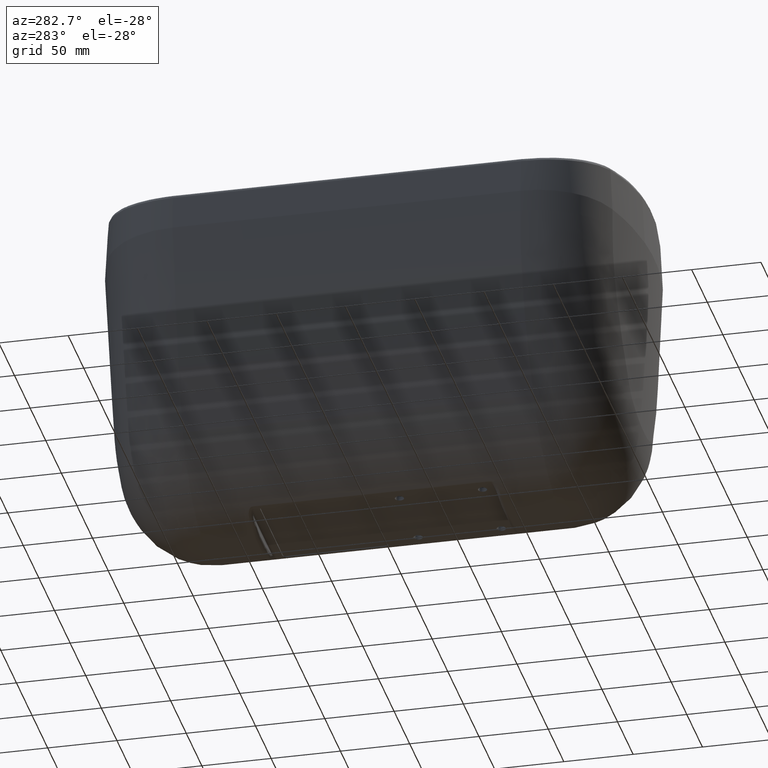
[diagram: clean part render]
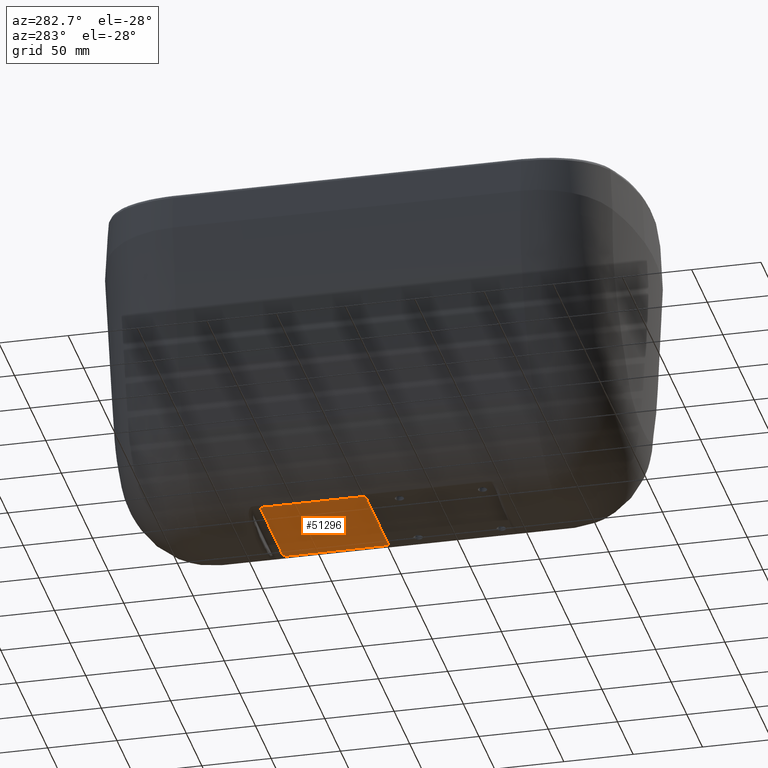
[diagram: same view with one face highlighted and labeled with its STEP entity id]
A machine part, auxiliary view. The second image highlights one B-rep face of the part: STEP entity #51296.
In plain terms, the highlighted planar face has unit normal (0, 0, -1).
Its self-contained STEP definition (entity closure, byte-faithful):
#201 = VECTOR ( 'NONE', #27063, 1000.000000000000000 ) ;
#569 = DIRECTION ( 'NONE',  ( 0.0000000000000000000, 1.000000000000000000, 0.0000000000000000000 ) ) ;
#893 = DIRECTION ( 'NONE',  ( 1.387778780781440499E-16, 4.287526199837195250E-16, -1.000000000000000000 ) ) ;
#1860 = AXIS2_PLACEMENT_3D ( 'NONE', #49621, #20911, #20588 ) ;
#3603 = VECTOR ( 'NONE', #42622, 1000.000000000000000 ) ;
#3881 = ORIENTED_EDGE ( 'NONE', *, *, #5390, .T. ) ;
#5390 = EDGE_CURVE ( 'NONE', #17778, #63738, #18029, .T. ) ;
#5910 = AXIS2_PLACEMENT_3D ( 'NONE', #24760, #893, #569 ) ;
#7415 = CARTESIAN_POINT ( 'NONE',  ( 37.99999999999993605, 129.4999999999972715, 91.49999999999808153 ) ) ;
#8703 = DIRECTION ( 'NONE',  ( 1.387778780781440499E-16, 4.287526199837195250E-16, -1.000000000000000000 ) ) ;
#10908 = PLANE ( 'NONE',  #1860 ) ;
#12025 = DIRECTION ( 'NONE',  ( 0.0000000000000000000, 1.000000000000000000, 0.0000000000000000000 ) ) ;
#12519 = VECTOR ( 'NONE', #14651, 1000.000000000000000 ) ;
#14437 = CIRCLE ( 'NONE', #58737, 2.500000000000002220 ) ;
#14651 = DIRECTION ( 'NONE',  ( -1.661425300935535311E-15, 1.000000000000000000, 5.863854003301890608E-16 ) ) ;
#15496 = DIRECTION ( 'NONE',  ( 0.0000000000000000000, 1.000000000000000000, 0.0000000000000000000 ) ) ;
#16788 = EDGE_CURVE ( 'NONE', #61422, #20073, #58527, .T. ) ;
#16825 = ORIENTED_EDGE ( 'NONE', *, *, #55019, .T. ) ;
#17778 = VERTEX_POINT ( 'NONE', #54499 ) ;
#18029 = LINE ( 'NONE', #7415, #201 ) ;
#18570 = AXIS2_PLACEMENT_3D ( 'NONE', #59687, #30334, #15496 ) ;
#19618 = CARTESIAN_POINT ( 'NONE',  ( 35.49999999999990052, 131.9999999999972999, 91.49999999999808153 ) ) ;
#19777 = VERTEX_POINT ( 'NONE', #63365 ) ;
#20073 = VERTEX_POINT ( 'NONE', #59781 ) ;
#20214 = CARTESIAN_POINT ( 'NONE',  ( -35.50000000000027001, 131.9999999999971294, 91.49999999999808153 ) ) ;
#20588 = DIRECTION ( 'NONE',  ( 0.0000000000000000000, 1.000000000000000000, 4.287526199837195743E-16 ) ) ;
#20911 = DIRECTION ( 'NONE',  ( 1.387778780781440252E-16, 4.287526199837195743E-16, -1.000000000000000000 ) ) ;
#21185 = EDGE_CURVE ( 'NONE', #25666, #17778, #14437, .T. ) ;
#21498 = VECTOR ( 'NONE', #29193, 1000.000000000000000 ) ;
#21902 = ORIENTED_EDGE ( 'NONE', *, *, #21185, .T. ) ;
#23796 = VERTEX_POINT ( 'NONE', #20214 ) ;
#24044 = ORIENTED_EDGE ( 'NONE', *, *, #48195, .T. ) ;
#24760 = CARTESIAN_POINT ( 'NONE',  ( -35.50000000000027001, 129.4999999999972147, 91.49999999999808153 ) ) ;
#25666 = VERTEX_POINT ( 'NONE', #19618 ) ;
#27063 = DIRECTION ( 'NONE',  ( 6.841163003852196506E-16, -1.000000000000000000, -3.909236002201255146E-16 ) ) ;
#29193 = DIRECTION ( 'NONE',  ( -1.000000000000000000, -7.818472004402510293E-16, -1.954618001100627573E-16 ) ) ;
#30077 = ORIENTED_EDGE ( 'NONE', *, *, #16788, .T. ) ;
#30334 = DIRECTION ( 'NONE',  ( 1.387778780781440499E-16, 4.287526199837195250E-16, -1.000000000000000000 ) ) ;
#30888 = VERTEX_POINT ( 'NONE', #60686 ) ;
#32107 = EDGE_CURVE ( 'NONE', #63738, #30888, #46001, .T. ) ;
#32289 = ORIENTED_EDGE ( 'NONE', *, *, #32107, .T. ) ;
#32889 = DIRECTION ( 'NONE',  ( 0.0000000000000000000, 1.000000000000000000, 0.0000000000000000000 ) ) ;
#34211 = CARTESIAN_POINT ( 'NONE',  ( 37.99999999999998579, 58.49999999999727862, 91.49999999999805311 ) ) ;
#35704 = ORIENTED_EDGE ( 'NONE', *, *, #45073, .T. ) ;
#37447 = ORIENTED_EDGE ( 'NONE', *, *, #62239, .T. ) ;
#38464 = EDGE_LOOP ( 'NONE', ( #32289, #35704, #16825, #30077, #24044, #37447, #21902, #3881 ) ) ;
#42622 = DIRECTION ( 'NONE',  ( 1.000000000000000000, 1.954618001100622051E-15, 0.0000000000000000000 ) ) ;
#43199 = CARTESIAN_POINT ( 'NONE',  ( 35.49999999999998579, 58.49999999999727862, 91.49999999999805311 ) ) ;
#45073 = EDGE_CURVE ( 'NONE', #30888, #19777, #53396, .T. ) ;
#46001 = CIRCLE ( 'NONE', #59368, 2.500000000000002220 ) ;
#46549 = DIRECTION ( 'NONE',  ( 1.387778780781440499E-16, 4.287526199837195250E-16, -1.000000000000000000 ) ) ;
#48195 = EDGE_CURVE ( 'NONE', #20073, #23796, #57353, .T. ) ;
#49309 = FACE_OUTER_BOUND ( 'NONE', #38464, .T. ) ;
#49621 = CARTESIAN_POINT ( 'NONE',  ( 35.49999999999998579, 58.49999999999727862, 91.49999999999805311 ) ) ;
#51296 = ADVANCED_FACE ( 'NONE', ( #49309 ), #10908, .T. ) ;
#52532 = CIRCLE ( 'NONE', #18570, 2.500000000000043965 ) ;
#53396 = LINE ( 'NONE', #57901, #21498 ) ;
#54499 = CARTESIAN_POINT ( 'NONE',  ( 37.99999999999993605, 129.4999999999972715, 91.49999999999808153 ) ) ;
#55019 = EDGE_CURVE ( 'NONE', #19777, #61422, #52532, .T. ) ;
#56221 = CARTESIAN_POINT ( 'NONE',  ( 35.49999999999993605, 129.4999999999972715, 91.49999999999808153 ) ) ;
#56830 = LINE ( 'NONE', #58084, #3603 ) ;
#57353 = CIRCLE ( 'NONE', #5910, 2.499999999999919176 ) ;
#57901 = CARTESIAN_POINT ( 'NONE',  ( 35.49999999999998579, 55.99999999999727152, 91.49999999999805311 ) ) ;
#58084 = CARTESIAN_POINT ( 'NONE',  ( -35.50000000000030553, 131.9999999999971578, 91.49999999999808153 ) ) ;
#58527 = LINE ( 'NONE', #58843, #12519 ) ;
#58737 = AXIS2_PLACEMENT_3D ( 'NONE', #56221, #46549, #12025 ) ;
#58843 = CARTESIAN_POINT ( 'NONE',  ( -38.00000000000005684, 58.49999999999727862, 91.49999999999803890 ) ) ;
#59368 = AXIS2_PLACEMENT_3D ( 'NONE', #43199, #8703, #32889 ) ;
#59687 = CARTESIAN_POINT ( 'NONE',  ( -35.50000000000002132, 58.49999999999727862, 91.49999999999803890 ) ) ;
#59781 = CARTESIAN_POINT ( 'NONE',  ( -38.00000000000017053, 129.4999999999972147, 91.49999999999808153 ) ) ;
#60686 = CARTESIAN_POINT ( 'NONE',  ( 35.49999999999998579, 55.99999999999727152, 91.49999999999805311 ) ) ;
#61258 = CARTESIAN_POINT ( 'NONE',  ( -38.00000000000007105, 58.49999999999727862, 91.49999999999803890 ) ) ;
#61422 = VERTEX_POINT ( 'NONE', #61258 ) ;
#62239 = EDGE_CURVE ( 'NONE', #23796, #25666, #56830, .T. ) ;
#63365 = CARTESIAN_POINT ( 'NONE',  ( -35.50000000000002132, 55.99999999999722178, 91.49999999999803890 ) ) ;
#63738 = VERTEX_POINT ( 'NONE', #34211 ) ;